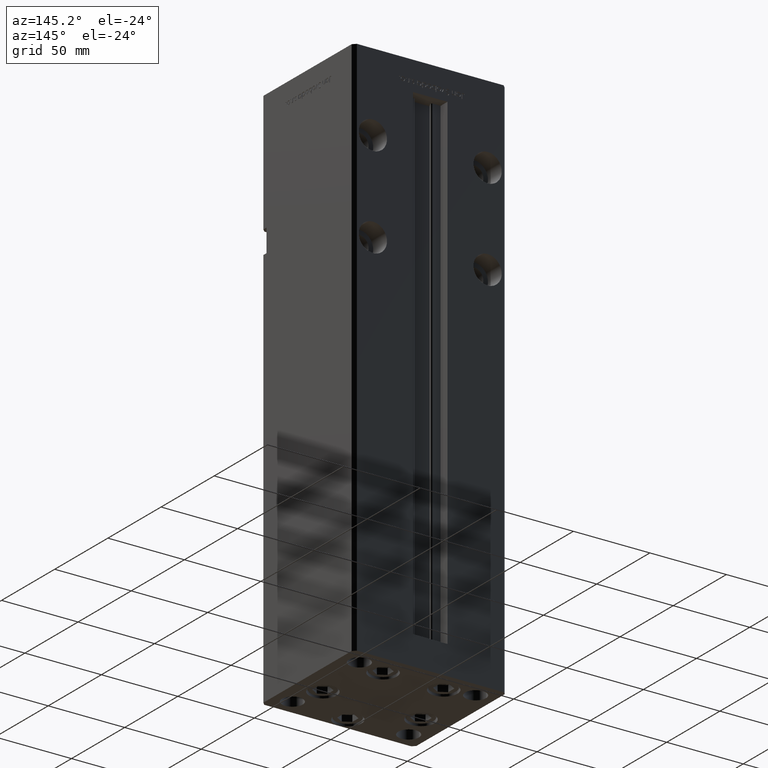
[diagram: clean part render]
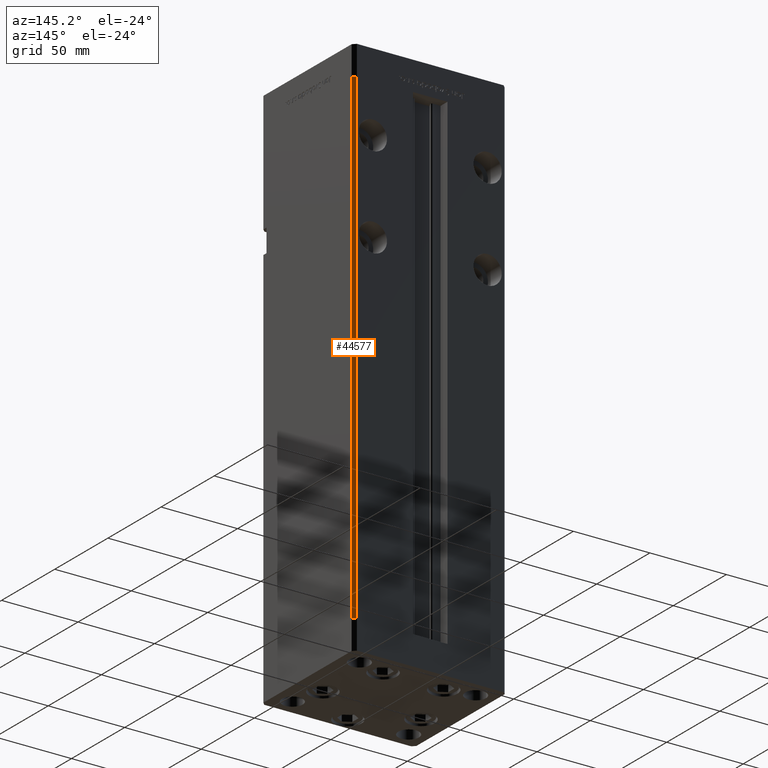
[diagram: same view with one face highlighted and labeled with its STEP entity id]
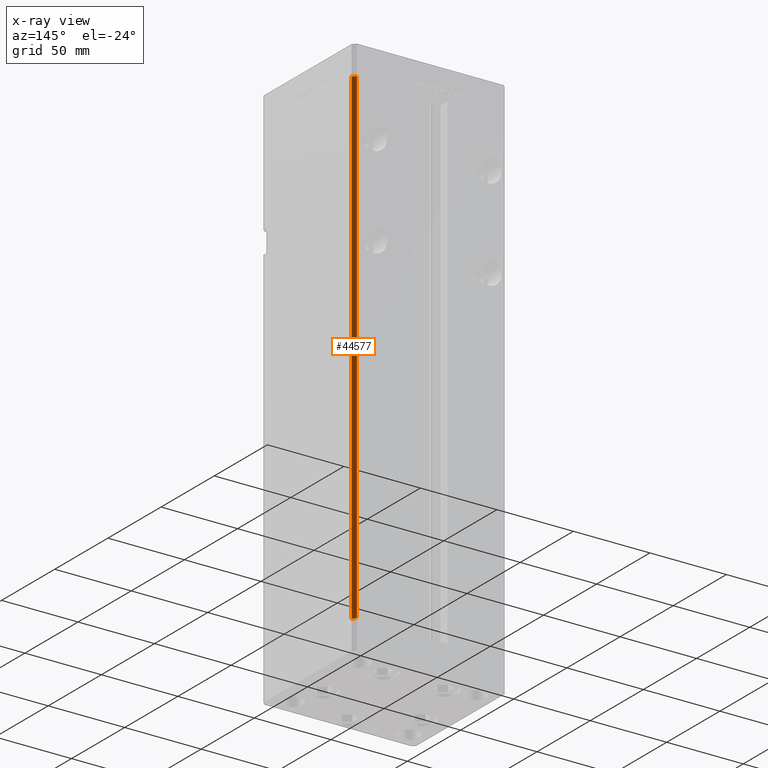
[diagram: x-ray of the same camera — body ghosted, the highlighted face saturated]
A machine part, auxiliary view. The second image highlights one B-rep face of the part: STEP entity #44577.
The next image is the same camera in x-ray: the body ghosted, the highlighted face saturated — about 0% of this face is hidden behind the body in this view.
In plain terms, the highlighted planar face has unit normal (0.7071, 0.7071, 0).
Its self-contained STEP definition (entity closure, byte-faithful):
#2077 = EDGE_LOOP ( 'NONE', ( #14765, #45762, #38981, #46118 ) ) ;
#4183 = FACE_OUTER_BOUND ( 'NONE', #2077, .T. ) ;
#4526 = EDGE_CURVE ( 'NONE', #5348, #7815, #42925, .T. ) ;
#5348 = VERTEX_POINT ( 'NONE', #15872 ) ;
#7422 = DIRECTION ( 'NONE',  ( 0.7071067811865463515, 0.7071067811865487940, -0.000000000000000000 ) ) ;
#7815 = VERTEX_POINT ( 'NONE', #9568 ) ;
#9568 = CARTESIAN_POINT ( 'NONE',  ( 50.00000000000001421, 41.49999999999999289, 318.5000000000000000 ) ) ;
#11431 = CARTESIAN_POINT ( 'NONE',  ( 48.00000000000000711, 43.50000000000000000, 318.5000000000000000 ) ) ;
#12243 = CARTESIAN_POINT ( 'NONE',  ( 48.00000000000000711, 43.50000000000000000, 0.000000000000000000 ) ) ;
#14230 = LINE ( 'NONE', #41957, #17831 ) ;
#14765 = ORIENTED_EDGE ( 'NONE', *, *, #17394, .F. ) ;
#15872 = CARTESIAN_POINT ( 'NONE',  ( 48.00000000000000711, 43.50000000000000000, 318.5000000000000000 ) ) ;
#17394 = EDGE_CURVE ( 'NONE', #50849, #21532, #29443, .T. ) ;
#17831 = VECTOR ( 'NONE', #38167, 1000.000000000000000 ) ;
#19989 = VECTOR ( 'NONE', #49070, 1000.000000000000000 ) ;
#21532 = VERTEX_POINT ( 'NONE', #41092 ) ;
#21604 = CARTESIAN_POINT ( 'NONE',  ( 48.00000000000000711, 43.50000000000000000, 318.5000000000000000 ) ) ;
#22490 = VECTOR ( 'NONE', #38878, 1000.000000000000000 ) ;
#25260 = EDGE_CURVE ( 'NONE', #5348, #50849, #29431, .T. ) ;
#27334 = CARTESIAN_POINT ( 'NONE',  ( 48.00000000000000711, 43.50000000000000000, 318.5000000000000000 ) ) ;
#29431 = LINE ( 'NONE', #21604, #19989 ) ;
#29443 = LINE ( 'NONE', #12243, #34346 ) ;
#34346 = VECTOR ( 'NONE', #45049, 1000.000000000000000 ) ;
#37801 = CARTESIAN_POINT ( 'NONE',  ( 48.00000000000000711, 43.50000000000000000, 0.000000000000000000 ) ) ;
#38167 = DIRECTION ( 'NONE',  ( -0.000000000000000000, -0.000000000000000000, -1.000000000000000000 ) ) ;
#38878 = DIRECTION ( 'NONE',  ( 0.7071067811865487940, -0.7071067811865463515, 0.000000000000000000 ) ) ;
#38981 = ORIENTED_EDGE ( 'NONE', *, *, #4526, .T. ) ;
#41092 = CARTESIAN_POINT ( 'NONE',  ( 50.00000000000001421, 41.49999999999999289, 0.000000000000000000 ) ) ;
#41921 = AXIS2_PLACEMENT_3D ( 'NONE', #11431, #7422, #48799 ) ;
#41957 = CARTESIAN_POINT ( 'NONE',  ( 50.00000000000001421, 41.49999999999999289, 318.5000000000000000 ) ) ;
#42925 = LINE ( 'NONE', #27334, #22490 ) ;
#43021 = EDGE_CURVE ( 'NONE', #7815, #21532, #14230, .T. ) ;
#44577 = ADVANCED_FACE ( 'NONE', ( #4183 ), #48276, .T. ) ;
#45049 = DIRECTION ( 'NONE',  ( 0.7071067811865487940, -0.7071067811865463515, 0.000000000000000000 ) ) ;
#45762 = ORIENTED_EDGE ( 'NONE', *, *, #25260, .F. ) ;
#46118 = ORIENTED_EDGE ( 'NONE', *, *, #43021, .T. ) ;
#48276 = PLANE ( 'NONE',  #41921 ) ;
#48799 = DIRECTION ( 'NONE',  ( -0.7071067811865487940, 0.7071067811865463515, 0.000000000000000000 ) ) ;
#49070 = DIRECTION ( 'NONE',  ( -0.000000000000000000, -0.000000000000000000, -1.000000000000000000 ) ) ;
#50849 = VERTEX_POINT ( 'NONE', #37801 ) ;